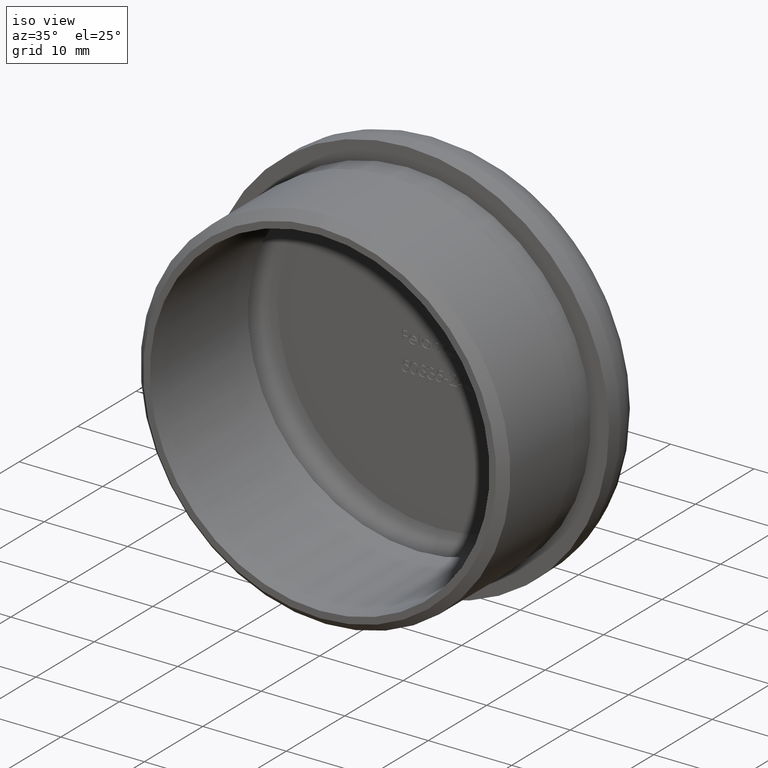
[diagram: clean part render]
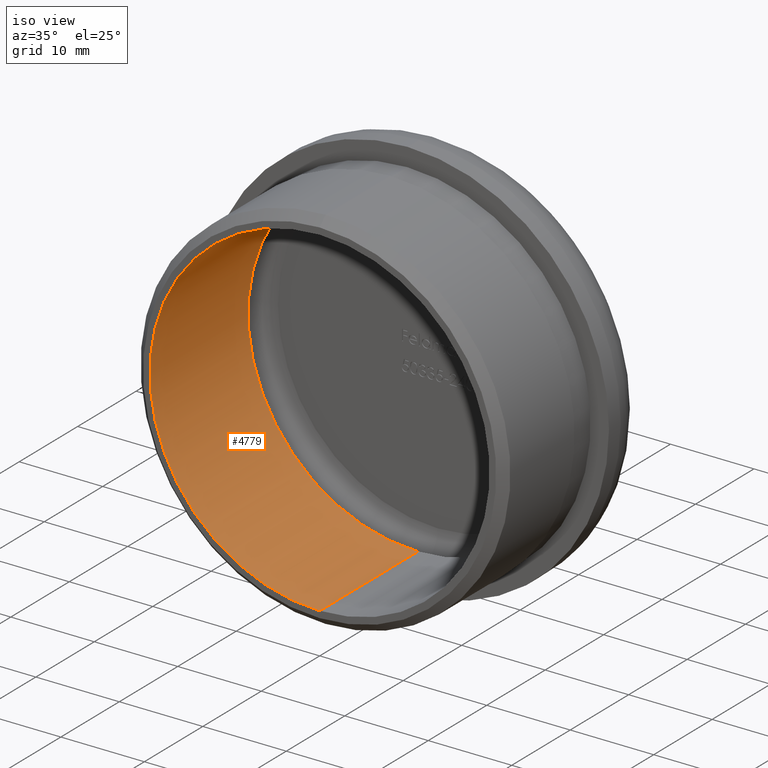
[diagram: same view with one face highlighted and labeled with its STEP entity id]
A machine part, iso view. The second image highlights one B-rep face of the part: STEP entity #4779.
In plain terms, the highlighted cylindrical surface (partial cylindrical patch) has radius 20.35 mm, axis along (-0, -1, -0).
Its self-contained STEP definition (entity closure, byte-faithful):
#167 = AXIS2_PLACEMENT_3D ( 'NONE', #9403, #3945, #5006 ) ;
#538 = DIRECTION ( 'NONE',  ( 0.0000000000000000000, 0.0000000000000000000, -1.000000000000000000 ) ) ;
#1336 = AXIS2_PLACEMENT_3D ( 'NONE', #11435, #13683, #538 ) ;
#1655 = VERTEX_POINT ( 'NONE', #3413 ) ;
#1857 = DIRECTION ( 'NONE',  ( -0.0000000000000000000, -1.000000000000000000, -0.0000000000000000000 ) ) ;
#3121 = FACE_OUTER_BOUND ( 'NONE', #13542, .T. ) ;
#3259 = EDGE_CURVE ( 'NONE', #6507, #1655, #12564, .T. ) ;
#3413 = CARTESIAN_POINT ( 'NONE',  ( 0.0000000000000000000, 0.0000000000000000000, -20.35000000000000500 ) ) ;
#3945 = DIRECTION ( 'NONE',  ( -0.0000000000000000000, -1.000000000000000000, -0.0000000000000000000 ) ) ;
#4511 = LINE ( 'NONE', #9282, #7629 ) ;
#4705 = ORIENTED_EDGE ( 'NONE', *, *, #7781, .T. ) ;
#4779 = ADVANCED_FACE ( 'NONE', ( #3121 ), #11038, .F. ) ;
#5006 = DIRECTION ( 'NONE',  ( 0.0000000000000000000, 0.0000000000000000000, -1.000000000000000000 ) ) ;
#5574 = DIRECTION ( 'NONE',  ( 0.0000000000000000000, 0.0000000000000000000, -1.000000000000000000 ) ) ;
#6049 = ORIENTED_EDGE ( 'NONE', *, *, #3259, .T. ) ;
#6301 = VERTEX_POINT ( 'NONE', #10891 ) ;
#6507 = VERTEX_POINT ( 'NONE', #11677 ) ;
#7156 = CARTESIAN_POINT ( 'NONE',  ( 0.0000000000000000000, 20.19999999999999900, -20.35000000000000500 ) ) ;
#7277 = CARTESIAN_POINT ( 'NONE',  ( 0.0000000000000000000, 16.80000000000000100, -20.35000000000000500 ) ) ;
#7332 = EDGE_CURVE ( 'NONE', #6301, #9896, #9682, .T. ) ;
#7629 = VECTOR ( 'NONE', #1857, 1000.000000000000000 ) ;
#7781 = EDGE_CURVE ( 'NONE', #6301, #6507, #4511, .T. ) ;
#8174 = ORIENTED_EDGE ( 'NONE', *, *, #7332, .F. ) ;
#9282 = CARTESIAN_POINT ( 'NONE',  ( 2.492156236264864100E-015, 20.19999999999999900, 20.35000000000000500 ) ) ;
#9403 = CARTESIAN_POINT ( 'NONE',  ( 0.0000000000000000000, 0.0000000000000000000, 0.0000000000000000000 ) ) ;
#9522 = ORIENTED_EDGE ( 'NONE', *, *, #12378, .F. ) ;
#9682 = CIRCLE ( 'NONE', #1336, 20.35000000000000500 ) ;
#9896 = VERTEX_POINT ( 'NONE', #7277 ) ;
#10090 = AXIS2_PLACEMENT_3D ( 'NONE', #13432, #12147, #5574 ) ;
#10891 = CARTESIAN_POINT ( 'NONE',  ( 2.492156236264864100E-015, 16.80000000000000100, 20.35000000000000500 ) ) ;
#11038 = CYLINDRICAL_SURFACE ( 'NONE', #10090, 20.35000000000000500 ) ;
#11435 = CARTESIAN_POINT ( 'NONE',  ( 0.0000000000000000000, 16.80000000000000100, 0.0000000000000000000 ) ) ;
#11593 = DIRECTION ( 'NONE',  ( -0.0000000000000000000, -1.000000000000000000, -0.0000000000000000000 ) ) ;
#11677 = CARTESIAN_POINT ( 'NONE',  ( 2.492156236264864100E-015, 0.0000000000000000000, 20.35000000000000500 ) ) ;
#11839 = VECTOR ( 'NONE', #11593, 1000.000000000000000 ) ;
#12147 = DIRECTION ( 'NONE',  ( -0.0000000000000000000, -1.000000000000000000, -0.0000000000000000000 ) ) ;
#12378 = EDGE_CURVE ( 'NONE', #9896, #1655, #13703, .T. ) ;
#12564 = CIRCLE ( 'NONE', #167, 20.35000000000000500 ) ;
#13432 = CARTESIAN_POINT ( 'NONE',  ( 0.0000000000000000000, 20.19999999999999900, 0.0000000000000000000 ) ) ;
#13542 = EDGE_LOOP ( 'NONE', ( #8174, #4705, #6049, #9522 ) ) ;
#13683 = DIRECTION ( 'NONE',  ( -0.0000000000000000000, -1.000000000000000000, -0.0000000000000000000 ) ) ;
#13703 = LINE ( 'NONE', #7156, #11839 ) ;